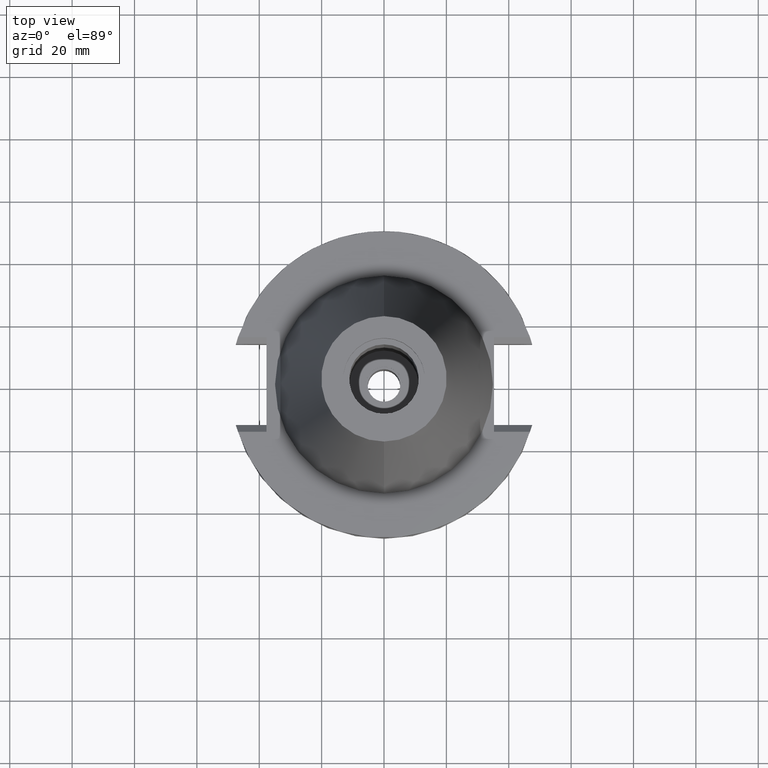
[diagram: clean part render]
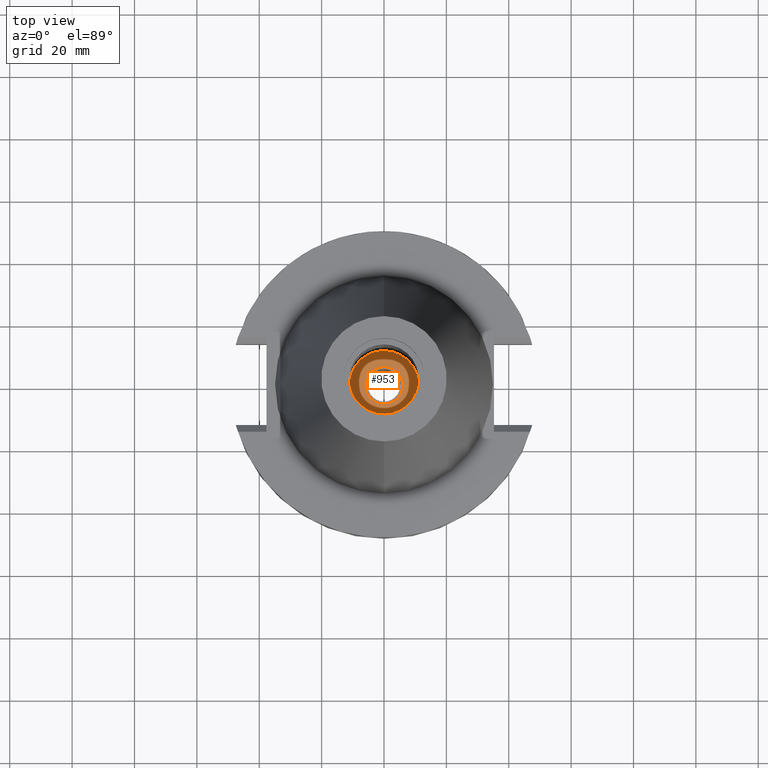
[diagram: same view with one face highlighted and labeled with its STEP entity id]
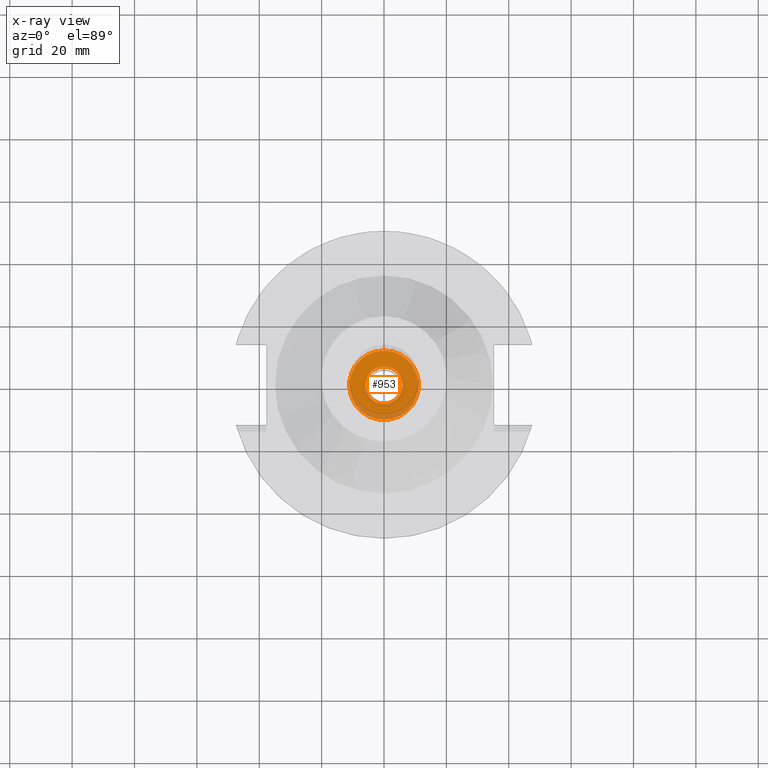
[diagram: x-ray of the same camera — body ghosted, the highlighted face saturated]
A machine part, top view. The second image highlights one B-rep face of the part: STEP entity #953.
The next image is the same camera in x-ray: the body ghosted, the highlighted face saturated — about 16% of this face is hidden behind the body in this view.
In plain terms, the highlighted planar face has unit normal (0, 0, -1).
Its self-contained STEP definition (entity closure, byte-faithful):
#29 = VERTEX_POINT ( 'NONE', #1865 ) ;
#48 = CARTESIAN_POINT ( 'NONE',  ( 0.0000000000000000000, 2.579412320703999880E-14, -18.39999999999999858 ) ) ;
#79 = AXIS2_PLACEMENT_3D ( 'NONE', #179, #1220, #3292 ) ;
#81 = DIRECTION ( 'NONE',  ( 0.0000000000000000000, 0.0000000000000000000, -1.000000000000000000 ) ) ;
#99 = AXIS2_PLACEMENT_3D ( 'NONE', #1856, #81, #1876 ) ;
#127 = ORIENTED_EDGE ( 'NONE', *, *, #3084, .F. ) ;
#166 = PLANE ( 'NONE',  #79 ) ;
#179 = CARTESIAN_POINT ( 'NONE',  ( 0.0000000000000000000, 0.0000000000000000000, -18.39999999999999858 ) ) ;
#271 = DIRECTION ( 'NONE',  ( 0.0000000000000000000, 1.000000000000000000, 0.0000000000000000000 ) ) ;
#279 = EDGE_LOOP ( 'NONE', ( #398, #1125 ) ) ;
#325 = VERTEX_POINT ( 'NONE', #1210 ) ;
#326 = CIRCLE ( 'NONE', #382, 6.000000000000000000 ) ;
#382 = AXIS2_PLACEMENT_3D ( 'NONE', #48, #2084, #271 ) ;
#398 = ORIENTED_EDGE ( 'NONE', *, *, #2734, .F. ) ;
#450 = DIRECTION ( 'NONE',  ( 0.0000000000000000000, 0.0000000000000000000, -1.000000000000000000 ) ) ;
#593 = EDGE_CURVE ( 'NONE', #325, #914, #326, .T. ) ;
#780 = CARTESIAN_POINT ( 'NONE',  ( 0.0000000000000000000, 2.579412320703999880E-14, -18.39999999999999858 ) ) ;
#914 = VERTEX_POINT ( 'NONE', #2746 ) ;
#953 = ADVANCED_FACE ( 'NONE', ( #2476, #1020 ), #166, .F. ) ;
#1020 = FACE_BOUND ( 'NONE', #1436, .T. ) ;
#1125 = ORIENTED_EDGE ( 'NONE', *, *, #3048, .F. ) ;
#1163 = CARTESIAN_POINT ( 'NONE',  ( 0.0000000000000000000, 11.15000000000000036, -18.39999999999999858 ) ) ;
#1210 = CARTESIAN_POINT ( 'NONE',  ( 0.0000000000000000000, 6.000000000000000000, -18.39999999999999858 ) ) ;
#1220 = DIRECTION ( 'NONE',  ( 0.0000000000000000000, 0.0000000000000000000, -1.000000000000000000 ) ) ;
#1231 = AXIS2_PLACEMENT_3D ( 'NONE', #2745, #450, #2493 ) ;
#1332 = CIRCLE ( 'NONE', #1231, 11.15000000000000036 ) ;
#1436 = EDGE_LOOP ( 'NONE', ( #1920, #127 ) ) ;
#1757 = DIRECTION ( 'NONE',  ( 0.0000000000000000000, -1.000000000000000000, 0.0000000000000000000 ) ) ;
#1856 = CARTESIAN_POINT ( 'NONE',  ( 0.0000000000000000000, 2.579412320703999880E-14, -18.39999999999999858 ) ) ;
#1865 = CARTESIAN_POINT ( 'NONE',  ( 0.0000000000000000000, -11.15000000000000036, -18.39999999999999858 ) ) ;
#1876 = DIRECTION ( 'NONE',  ( 0.0000000000000000000, 1.000000000000000000, 0.0000000000000000000 ) ) ;
#1920 = ORIENTED_EDGE ( 'NONE', *, *, #593, .F. ) ;
#2084 = DIRECTION ( 'NONE',  ( 0.0000000000000000000, 0.0000000000000000000, 1.000000000000000000 ) ) ;
#2332 = CIRCLE ( 'NONE', #3261, 6.000000000000000000 ) ;
#2476 = FACE_OUTER_BOUND ( 'NONE', #279, .T. ) ;
#2493 = DIRECTION ( 'NONE',  ( 0.0000000000000000000, -1.000000000000000000, 0.0000000000000000000 ) ) ;
#2734 = EDGE_CURVE ( 'NONE', #2891, #29, #3001, .T. ) ;
#2745 = CARTESIAN_POINT ( 'NONE',  ( 0.0000000000000000000, 2.579412320703999880E-14, -18.39999999999999858 ) ) ;
#2746 = CARTESIAN_POINT ( 'NONE',  ( 0.0000000000000000000, -6.000000000000000000, -18.39999999999999858 ) ) ;
#2779 = DIRECTION ( 'NONE',  ( 0.0000000000000000000, 0.0000000000000000000, 1.000000000000000000 ) ) ;
#2891 = VERTEX_POINT ( 'NONE', #1163 ) ;
#3001 = CIRCLE ( 'NONE', #99, 11.15000000000000036 ) ;
#3048 = EDGE_CURVE ( 'NONE', #29, #2891, #1332, .T. ) ;
#3084 = EDGE_CURVE ( 'NONE', #914, #325, #2332, .T. ) ;
#3261 = AXIS2_PLACEMENT_3D ( 'NONE', #780, #2779, #1757 ) ;
#3292 = DIRECTION ( 'NONE',  ( 0.0000000000000000000, -1.000000000000000000, 0.0000000000000000000 ) ) ;